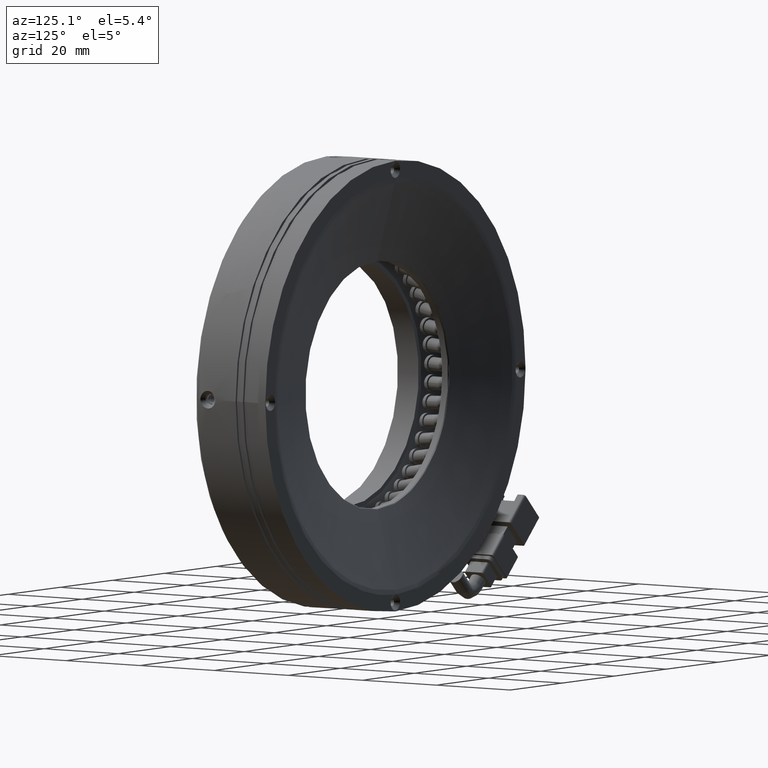
[diagram: clean part render]
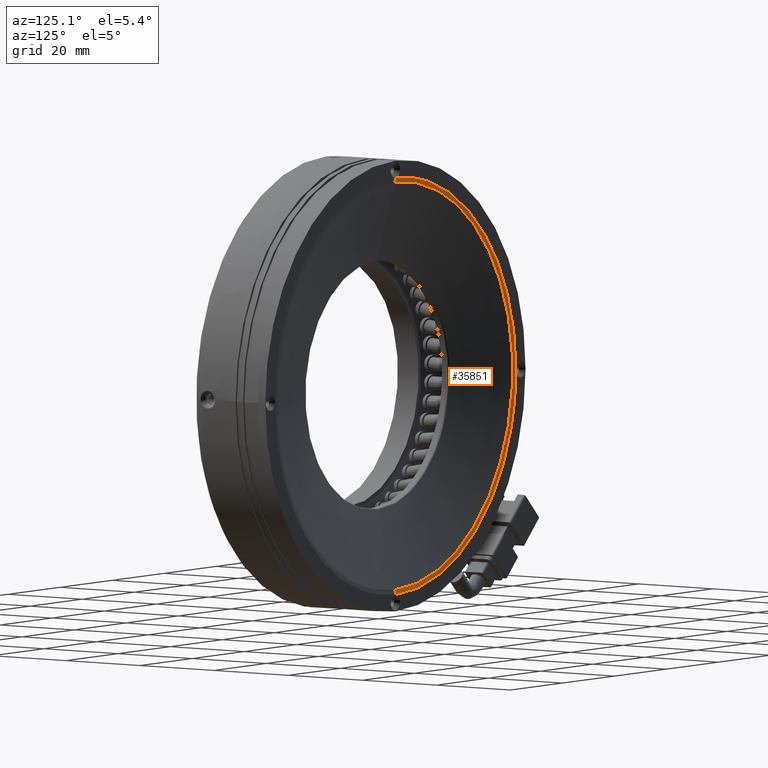
[diagram: same view with one face highlighted and labeled with its STEP entity id]
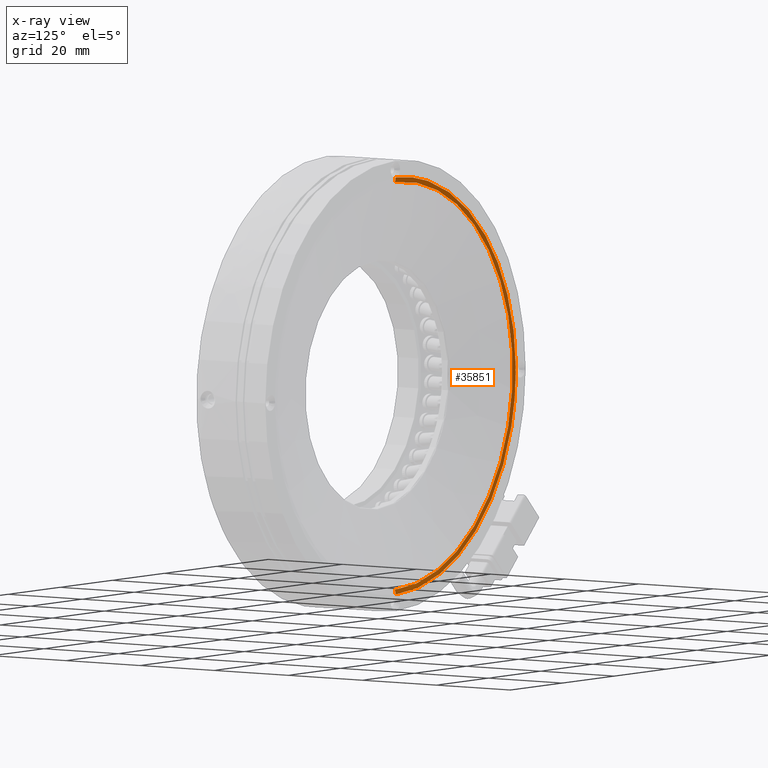
[diagram: x-ray of the same camera — body ghosted, the highlighted face saturated]
A machine part, auxiliary view. The second image highlights one B-rep face of the part: STEP entity #35851.
The next image is the same camera in x-ray: the body ghosted, the highlighted face saturated — about 0% of this face is hidden behind the body in this view.
In plain terms, the highlighted face is a freeform B-spline surface patch.
Its self-contained STEP definition (entity closure, byte-faithful):
#169 = EDGE_CURVE ( 'NONE', #91022, #149816, #151735, .T. ) ;
#4315 = DIRECTION ( 'NONE',  ( -1.000000000000000000, 0.0000000000000000000, 1.224646799147353200E-016 ) ) ;
#5480 =( BOUNDED_CURVE ( )  B_SPLINE_CURVE ( 3, ( #105920, #38921, #12438, #106497 ),
 .UNSPECIFIED., .F., .T. ) 
 B_SPLINE_CURVE_WITH_KNOTS ( ( 4, 4 ),
 ( 0.0000000000000000000, 1.000000000000000000 ),
 .UNSPECIFIED. ) 
 CURVE ( )  GEOMETRIC_REPRESENTATION_ITEM ( )  RATIONAL_B_SPLINE_CURVE ( ( 1.000000000000000000, 0.8094474236629253200, 0.8094474236629253200, 1.000000000000000000 ) ) 
 REPRESENTATION_ITEM ( '' )  );
#5604 = CARTESIAN_POINT ( 'NONE',  ( -24.00070779672868000, 20.70591402987624400, -45.91323857141013300 ) ) ;
#6173 = CARTESIAN_POINT ( 'NONE',  ( -42.33338414920752500, 20.56961733503103000, -26.49396587853226800 ) ) ;
#9754 = CIRCLE ( 'NONE', #169295, 45.22802881476470600 ) ;
#10252 = CARTESIAN_POINT ( 'NONE',  ( -43.36632813542038200, 20.70591402986206800, 0.4645260032283408100 ) ) ;
#10844 = CARTESIAN_POINT ( 'NONE',  ( 2.737177749744923000, 20.70542083420022900, -46.20049319569222500 ) ) ;
#12438 = CARTESIAN_POINT ( 'NONE',  ( -24.23938835365129700, 20.70591402987475500, 45.99317299771863100 ) ) ;
#14557 = VERTEX_POINT ( 'NONE', #32570 ) ;
#18147 = DIRECTION ( 'NONE',  ( 1.000000000000000000, 0.0000000000000000000, 0.0000000000000000000 ) ) ;
#18456 = CARTESIAN_POINT ( 'NONE',  ( -24.20577195335319900, 20.70591402987475500, 46.26330499912078400 ) ) ;
#19023 = CARTESIAN_POINT ( 'NONE',  ( 2.894644674083785200, 20.66022119255666900, 45.56616701441213000 ) ) ;
#19607 = CARTESIAN_POINT ( 'NONE',  ( 2.894644667477706400, 20.56961733503103000, -45.22802881476473400 ) ) ;
#20361 = ORIENTED_EDGE ( 'NONE', *, *, #98422, .T. ) ;
#20440 =( BOUNDED_SURFACE ( )  B_SPLINE_SURFACE ( 3, 3, ( 
 ( #111361, #18456, #112517, #31980, #126083, #45542, #139675 ),
 ( #59016, #153145, #72577, #166680, #86067, #5604, #99610 ),
 ( #19023, #113097, #32590, #126656, #46107, #140252, #59591 ),
 ( #153732, #73121, #167263, #86658, #6173, #100172, #19607 ) ),
 .UNSPECIFIED., .F., .F., .T. ) 
 B_SPLINE_SURFACE_WITH_KNOTS ( ( 4, 4 ),
 ( 4, 3, 4 ),
 ( 0.0000000000000000000, 1.000000000000000000 ),
 ( 0.0000000000000000000, 0.5000000000000000000, 1.000000000000000000 ),
 .UNSPECIFIED. ) 
 GEOMETRIC_REPRESENTATION_ITEM ( )  RATIONAL_B_SPLINE_SURFACE ( (
 ( 1.000000000000000000, 0.8047378541072792700, 0.8047378541072792700, 1.000000000000000000, 0.8047378541072792700, 0.8047378541072792700, 1.000000000000000000),
 ( 0.9942965742490215100, 0.8001480915073766500, 0.8001480915073766500, 0.9942965742490215100, 0.8001480915073766500, 0.8001480915073766500, 0.9942965742490215100),
 ( 0.9942965742490215100, 0.8001480915073766500, 0.8001480915073766500, 0.9942965742490215100, 0.8001480915073766500, 0.8001480915073766500, 0.9942965742490215100),
 ( 1.000000000000000000, 0.8047378541072792700, 0.8047378541072792700, 1.000000000000000000, 0.8047378541072792700, 0.8047378541072792700, 1.000000000000000000) ) ) 
 REPRESENTATION_ITEM ( '' )  SURFACE ( )  );
#21746 = EDGE_CURVE ( 'NONE', #23719, #123526, #134158, .T. ) ;
#23719 = VERTEX_POINT ( 'NONE', #124206 ) ;
#26849 = CARTESIAN_POINT ( 'NONE',  ( 2.582293280023555000, 20.70591402987489700, 46.22032417694013200 ) ) ;
#28448 = CARTESIAN_POINT ( 'NONE',  ( 2.430118664249032000, 20.70591402986206800, -46.26097280289884800 ) ) ;
#31980 = CARTESIAN_POINT ( 'NONE',  ( -43.36866032771413900, 20.70591402987475500, 3.353567423758363500E-009 ) ) ;
#32570 = CARTESIAN_POINT ( 'NONE',  ( 2.894644667477722900, 20.56961733503103000, -45.22802881476472700 ) ) ;
#32590 = CARTESIAN_POINT ( 'NONE',  ( -42.67152234499955200, 20.66022119255666600, 26.69204265652225100 ) ) ;
#34786 = CARTESIAN_POINT ( 'NONE',  ( -43.09852833024061900, 20.70591402987475100, -27.13403302112904900 ) ) ;
#35851 = ADVANCED_FACE ( 'NONE', ( #107203 ), #20440, .T. ) ;
#36417 = CARTESIAN_POINT ( 'NONE',  ( 2.894644667477717100, 20.56961733503103000, -6.938893903907228400E-015 ) ) ;
#37027 = CARTESIAN_POINT ( 'NONE',  ( 2.894644674175748600, 20.70542083420014700, 46.20049319568853000 ) ) ;
#38921 = CARTESIAN_POINT ( 'NONE',  ( -43.09852833024116600, 20.70591402987475500, 27.13403302112855500 ) ) ;
#42722 = CIRCLE ( 'NONE', #56547, 3.999999999999996400 ) ;
#45246 = B_SPLINE_CURVE_WITH_KNOTS ( 'NONE', 3,
 ( #104848, #10844, #131997, #51364 ),
 .UNSPECIFIED., .F., .F.,
 ( 4, 4 ),
 ( 0.0004684468313539371600, 0.0009368936627079126900 ),
 .UNSPECIFIED. ) ;
#45542 = CARTESIAN_POINT ( 'NONE',  ( -24.20577196006034300, 20.70591402987475500, -46.26330499519184500 ) ) ;
#46107 = CARTESIAN_POINT ( 'NONE',  ( -42.67152234886929600, 20.66022119255666600, -26.69204264991619300 ) ) ;
#49929 = DIRECTION ( 'NONE',  ( 0.0000000000000000000, 0.0000000000000000000, 1.000000000000000000 ) ) ;
#50186 = EDGE_LOOP ( 'NONE', ( #87321, #69654, #74013, #74925, #20361, #149480, #75914, #110928 ) ) ;
#50189 = CARTESIAN_POINT ( 'NONE',  ( -43.36632813542038200, 20.70591402986206800, -0.4645260032293249100 ) ) ;
#51364 = CARTESIAN_POINT ( 'NONE',  ( 2.430118664249032000, 20.70591402986206800, -46.26097280289884800 ) ) ;
#53906 = CARTESIAN_POINT ( 'NONE',  ( 2.430118664243857900, 20.70591402988101500, 46.26097280287935800 ) ) ;
#56547 = AXIS2_PLACEMENT_3D ( 'NONE', #84799, #4315, #98305 ) ;
#59016 = CARTESIAN_POINT ( 'NONE',  ( 2.894644674134102300, 20.70591402987624700, 45.91323857141012600 ) ) ;
#59591 = CARTESIAN_POINT ( 'NONE',  ( 2.894644667477706900, 20.66022119255666900, -45.56616701441214400 ) ) ;
#69654 = ORIENTED_EDGE ( 'NONE', *, *, #118366, .T. ) ;
#72577 = CARTESIAN_POINT ( 'NONE',  ( -43.01859390198280400, 20.70591402987624400, 26.89535246753457500 ) ) ;
#73121 = CARTESIAN_POINT ( 'NONE',  ( -23.59932120777602900, 20.56961733503103000, 45.22802881860572900 ) ) ;
#74013 = ORIENTED_EDGE ( 'NONE', *, *, #137387, .T. ) ;
#74295 = VERTEX_POINT ( 'NONE', #90580 ) ;
#74557 = B_SPLINE_CURVE_WITH_KNOTS ( 'NONE', 3,
 ( #50189, #130794, #77215, #171389, #90767, #10252 ),
 .UNSPECIFIED., .F., .F.,
 ( 4, 2, 4 ),
 ( 0.0000000000000000000, 0.0004674423683598615900, 0.0009348847367197231800 ),
 .UNSPECIFIED. ) ;
#74925 = ORIENTED_EDGE ( 'NONE', *, *, #82933, .F. ) ;
#75299 = CARTESIAN_POINT ( 'NONE',  ( 2.430118664249032000, 20.70591402986206800, -46.26097280289884800 ) ) ;
#75914 = ORIENTED_EDGE ( 'NONE', *, *, #141489, .T. ) ;
#77215 = CARTESIAN_POINT ( 'NONE',  ( -43.30592886937878900, 20.70542214589129800, -0.1577128641500888700 ) ) ;
#82933 = EDGE_CURVE ( 'NONE', #145201, #14557, #103188, .T. ) ;
#84799 = CARTESIAN_POINT ( 'NONE',  ( 2.894644667477722900, 16.70591402987475500, 46.26330499517478500 ) ) ;
#86067 = CARTESIAN_POINT ( 'NONE',  ( -43.01859390588202800, 20.70591402987624400, -26.89535246087819700 ) ) ;
#86658 = CARTESIAN_POINT ( 'NONE',  ( -42.33338414728700600, 20.56961733503103000, 3.278521551464130800E-009 ) ) ;
#87321 = ORIENTED_EDGE ( 'NONE', *, *, #21746, .T. ) ;
#88775 = CARTESIAN_POINT ( 'NONE',  ( -43.36632813542038200, 20.70591402986206800, -0.4645260032293249100 ) ) ;
#90580 = CARTESIAN_POINT ( 'NONE',  ( -43.36632813542038200, 20.70591402986206800, 0.4645260032283408100 ) ) ;
#90767 = CARTESIAN_POINT ( 'NONE',  ( -43.32566931294586300, 20.70591402987491100, 0.3123132151622511300 ) ) ;
#91022 = VERTEX_POINT ( 'NONE', #28448 ) ;
#91435 = EDGE_CURVE ( 'NONE', #74295, #23719, #5480, .T. ) ;
#98305 = DIRECTION ( 'NONE',  ( 1.084202172485505400E-016, 0.0000000000000000000, 1.000000000000000000 ) ) ;
#98422 = EDGE_CURVE ( 'NONE', #145201, #91022, #45246, .T. ) ;
#98696 = CARTESIAN_POINT ( 'NONE',  ( 2.894644667477717100, 16.70591402987475500, -46.26330499517479900 ) ) ;
#99610 = CARTESIAN_POINT ( 'NONE',  ( 2.894644667477706900, 20.70591402987624700, -45.91323857141014000 ) ) ;
#100172 = CARTESIAN_POINT ( 'NONE',  ( -23.59932121433309900, 20.56961733503103000, -45.22802881476472000 ) ) ;
#103188 = CIRCLE ( 'NONE', #107045, 3.999999999999996400 ) ;
#104848 = CARTESIAN_POINT ( 'NONE',  ( 2.894644667477717100, 20.70542083420022900, -46.20049319569222500 ) ) ;
#105920 = CARTESIAN_POINT ( 'NONE',  ( -43.36632813542038200, 20.70591402986206800, 0.4645260032283408100 ) ) ;
#106497 = CARTESIAN_POINT ( 'NONE',  ( 2.430118664243857900, 20.70591402988101500, 46.26097280287935800 ) ) ;
#107045 = AXIS2_PLACEMENT_3D ( 'NONE', #98696, #18147, #112201 ) ;
#107203 = FACE_OUTER_BOUND ( 'NONE', #50186, .T. ) ;
#110928 = ORIENTED_EDGE ( 'NONE', *, *, #91435, .T. ) ;
#111361 = CARTESIAN_POINT ( 'NONE',  ( 2.894644674184854600, 20.70591402987475500, 46.26330499519184500 ) ) ;
#112201 = DIRECTION ( 'NONE',  ( 0.0000000000000000000, 0.0000000000000000000, -1.000000000000000000 ) ) ;
#112517 = CARTESIAN_POINT ( 'NONE',  ( -43.36866032574964400, 20.70591402987475500, 27.10041663089162600 ) ) ;
#113097 = CARTESIAN_POINT ( 'NONE',  ( -23.79739797913542900, 20.66022119255666600, 45.56616701828187400 ) ) ;
#118366 = EDGE_CURVE ( 'NONE', #123526, #123663, #42722, .T. ) ;
#123526 = VERTEX_POINT ( 'NONE', #37027 ) ;
#123663 = VERTEX_POINT ( 'NONE', #136399 ) ;
#124206 = CARTESIAN_POINT ( 'NONE',  ( 2.430118664243857900, 20.70591402988101500, 46.26097280287935800 ) ) ;
#126083 = CARTESIAN_POINT ( 'NONE',  ( -43.36866032967861200, 20.70591402987475500, -27.10041662418448300 ) ) ;
#126656 = CARTESIAN_POINT ( 'NONE',  ( -42.67152234693441700, 20.66022119255666900, 3.303032760498814100E-009 ) ) ;
#128884 = CARTESIAN_POINT ( 'NONE',  ( -24.23938835365089900, 20.70591402987475100, -45.99317299771858800 ) ) ;
#130504 = DIRECTION ( 'NONE',  ( -0.0000000000000000000, -1.000000000000000000, -0.0000000000000000000 ) ) ;
#130794 = CARTESIAN_POINT ( 'NONE',  ( -43.32566330173371200, 20.70591402987490800, -0.3122907112316987700 ) ) ;
#131997 = CARTESIAN_POINT ( 'NONE',  ( 2.582293277829341300, 20.70591402987493600, -46.22032417752996700 ) ) ;
#134158 = B_SPLINE_CURVE_WITH_KNOTS ( 'NONE', 3,
 ( #53906, #26849, #160962, #148033 ),
 .UNSPECIFIED., .F., .F.,
 ( 4, 4 ),
 ( -0.0004684468382184552800, 2.710505431213761100E-019 ),
 .UNSPECIFIED. ) ;
#136399 = CARTESIAN_POINT ( 'NONE',  ( 2.894644667477717100, 20.56961733503103000, 45.22802881476471300 ) ) ;
#137387 = EDGE_CURVE ( 'NONE', #123663, #14557, #9754, .T. ) ;
#139675 = CARTESIAN_POINT ( 'NONE',  ( 2.894644667477706400, 20.70591402987475500, -46.26330499519186600 ) ) ;
#140252 = CARTESIAN_POINT ( 'NONE',  ( -23.79739798574150800, 20.66022119255666600, -45.56616701441213000 ) ) ;
#141489 = EDGE_CURVE ( 'NONE', #149816, #74295, #74557, .T. ) ;
#145201 = VERTEX_POINT ( 'NONE', #146702 ) ;
#146702 = CARTESIAN_POINT ( 'NONE',  ( 2.894644667477717100, 20.70542083420022900, -46.20049319569222500 ) ) ;
#148033 = CARTESIAN_POINT ( 'NONE',  ( 2.894644674175748600, 20.70542083420014700, 46.20049319568853000 ) ) ;
#149480 = ORIENTED_EDGE ( 'NONE', *, *, #169, .T. ) ;
#149816 = VERTEX_POINT ( 'NONE', #88775 ) ;
#151735 =( BOUNDED_CURVE ( )  B_SPLINE_CURVE ( 3, ( #75299, #128884, #34786, #169482 ),
 .UNSPECIFIED., .F., .F. ) 
 B_SPLINE_CURVE_WITH_KNOTS ( ( 4, 4 ),
 ( 0.0000000000000000000, 1.000000000000000000 ),
 .UNSPECIFIED. ) 
 CURVE ( )  GEOMETRIC_REPRESENTATION_ITEM ( )  RATIONAL_B_SPLINE_CURVE ( ( 1.000000000000000000, 0.8094474236629306500, 0.8094474236629306500, 1.000000000000000000 ) ) 
 REPRESENTATION_ITEM ( '' )  );
#153145 = CARTESIAN_POINT ( 'NONE',  ( -24.00070779007228000, 20.70591402987624400, 45.91323857530934300 ) ) ;
#153732 = CARTESIAN_POINT ( 'NONE',  ( 2.894644674034763100, 20.56961733503103000, 45.22802881476471300 ) ) ;
#160962 = CARTESIAN_POINT ( 'NONE',  ( 2.737177754172725600, 20.70542083419073300, 46.20049319511183200 ) ) ;
#166680 = CARTESIAN_POINT ( 'NONE',  ( -43.01859390393242000, 20.70591402987624700, 3.328191455070905300E-009 ) ) ;
#167263 = CARTESIAN_POINT ( 'NONE',  ( -42.33338414536648000, 20.56961733503103000, 26.49396588508932000 ) ) ;
#169295 = AXIS2_PLACEMENT_3D ( 'NONE', #36417, #130504, #49929 ) ;
#169482 = CARTESIAN_POINT ( 'NONE',  ( -43.36632813542038200, 20.70591402986206800, -0.4645260032293249100 ) ) ;
#171389 = CARTESIAN_POINT ( 'NONE',  ( -43.30576866447105300, 20.70541953030376800, 0.1558440066745102000 ) ) ;